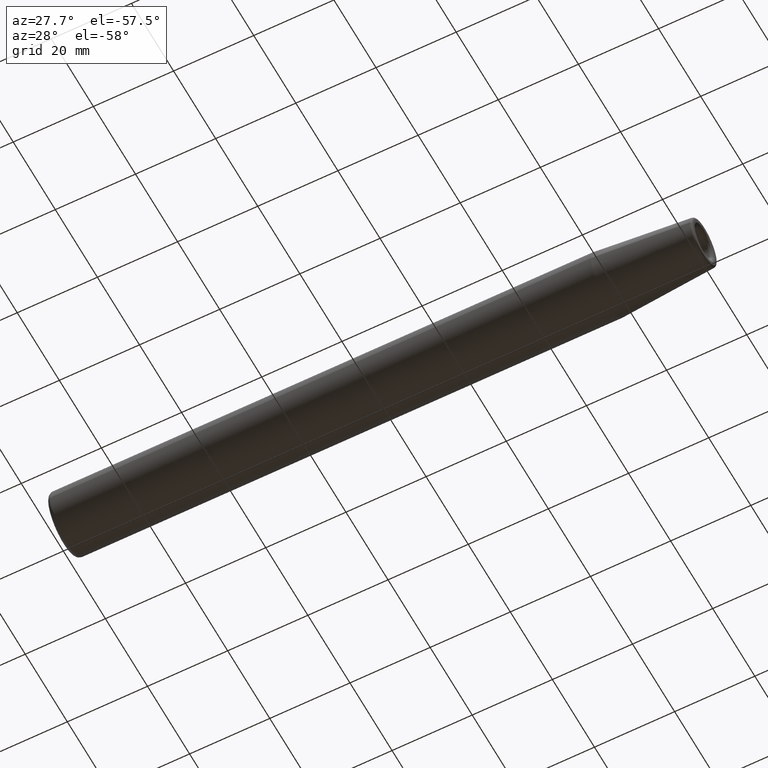
[diagram: clean part render]
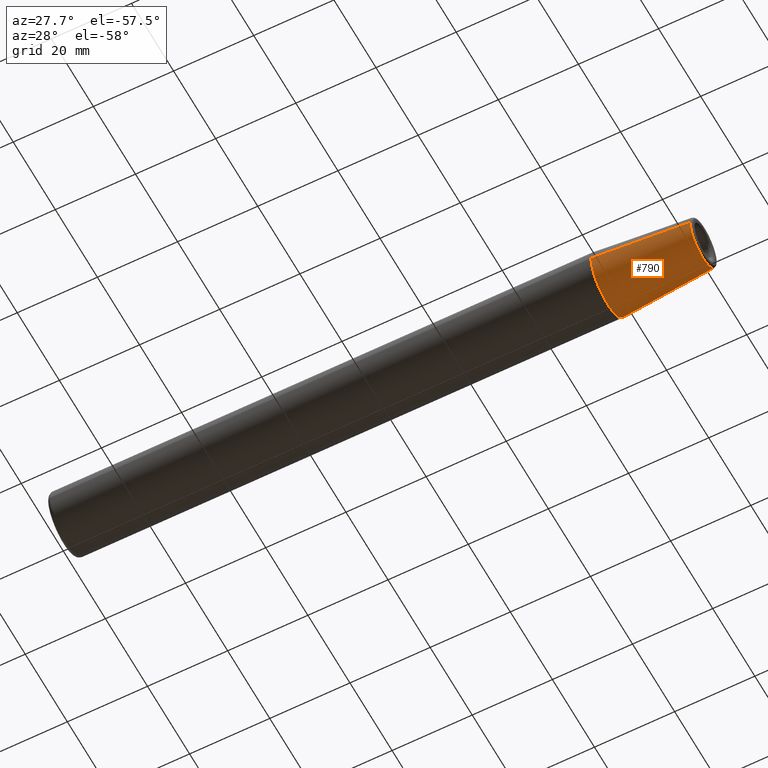
[diagram: same view with one face highlighted and labeled with its STEP entity id]
A machine part, auxiliary view. The second image highlights one B-rep face of the part: STEP entity #790.
In plain terms, the highlighted conical surface has half-angle 4.5 deg.
Its self-contained STEP definition (entity closure, byte-faithful):
#266=DIRECTION('',(-9.969173337331E-1,7.845909572785E-2,0.E0));
#267=VECTOR('',#266,2.383390429899E1);
#268=CARTESIAN_POINT('',(1.595392295479E2,6.067513421038E0,0.E0));
#269=LINE('',#268,#267);
#270=DIRECTION('',(-9.969173337331E-1,-7.845909572785E-2,0.E0));
#271=VECTOR('',#270,2.383390429899E1);
#272=CARTESIAN_POINT('',(1.595392295479E2,-6.067513421038E0,0.E0));
#273=LINE('',#272,#271);
#274=CARTESIAN_POINT('',(1.595392295479E2,0.E0,0.E0));
#275=DIRECTION('',(-1.E0,0.E0,0.E0));
#276=DIRECTION('',(0.E0,1.E0,0.E0));
#277=AXIS2_PLACEMENT_3D('',#274,#275,#276);
#297=CARTESIAN_POINT('',(1.357787972217E2,0.E0,0.E0));
#298=DIRECTION('',(-1.E0,0.E0,0.E0));
#299=DIRECTION('',(0.E0,1.E0,0.E0));
#300=AXIS2_PLACEMENT_3D('',#297,#298,#299);
#333=CARTESIAN_POINT('',(1.595392295479E2,6.067513421038E0,0.E0));
#335=VERTEX_POINT('',#333);
#336=CARTESIAN_POINT('',(1.357787972217E2,7.9375E0,0.E0));
#337=VERTEX_POINT('',#336);
#369=CARTESIAN_POINT('',(1.595392295479E2,-6.067513421038E0,0.E0));
#371=VERTEX_POINT('',#369);
#372=CARTESIAN_POINT('',(1.357787972217E2,-7.9375E0,0.E0));
#373=VERTEX_POINT('',#372);
#776=CARTESIAN_POINT('',(1.476590133848E2,0.E0,0.E0));
#777=DIRECTION('',(-1.E0,0.E0,0.E0));
#778=DIRECTION('',(0.E0,1.E0,0.E0));
#779=AXIS2_PLACEMENT_3D('',#776,#777,#778);
#780=CONICAL_SURFACE('',#779,7.002506710519E0,4.5E0);
#782=ORIENTED_EDGE('',*,*,#781,.T.);
#784=ORIENTED_EDGE('',*,*,#783,.T.);
#786=ORIENTED_EDGE('',*,*,#785,.F.);
#787=ORIENTED_EDGE('',*,*,#769,.F.);
#788=EDGE_LOOP('',(#782,#784,#786,#787));
#789=FACE_OUTER_BOUND('',#788,.F.);
#790=ADVANCED_FACE('',(#789),#780,.T.);
#278=CIRCLE('',#277,6.067513421038E0);
#301=CIRCLE('',#300,7.9375E0);
#769=EDGE_CURVE('',#335,#371,#278,.T.);
#781=EDGE_CURVE('',#335,#337,#269,.T.);
#783=EDGE_CURVE('',#337,#373,#301,.T.);
#785=EDGE_CURVE('',#371,#373,#273,.T.);